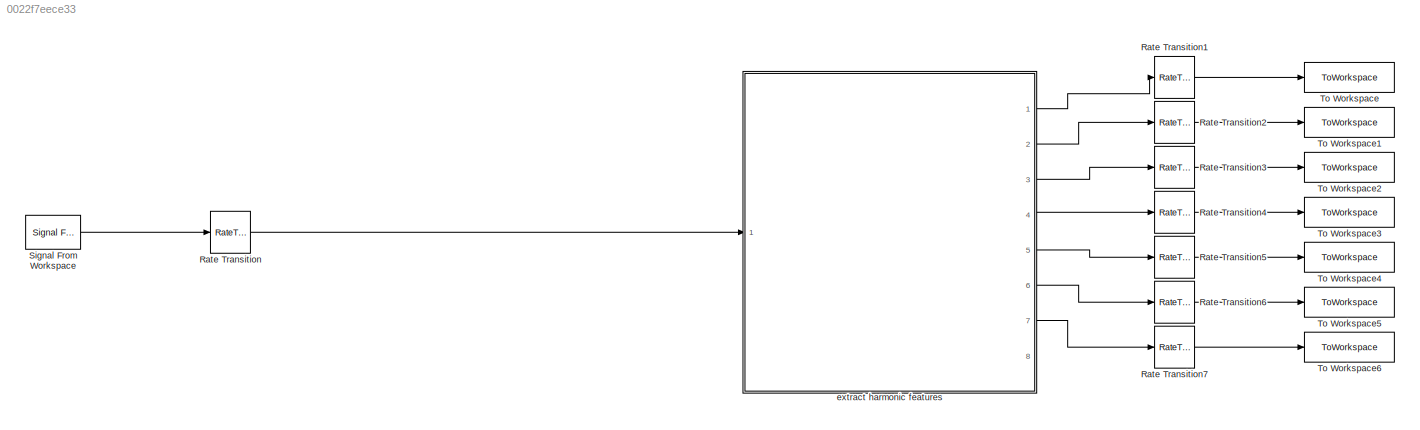
MODEL slx_0022f7eece33
KIND model
CONFIG AbsTol = auto
CONFIG EnableMultiTasking = off
CONFIG FixedStep = auto
CONFIG InitFcn = simulinkInitHarmonics
CONFIG MaxStep = auto
CONFIG MinStep = auto
CONFIG PostLoadFcn = addpath([fileparts(which(bdroot)) filesep '..' filesep])
CONFIG RelTol = 1e-3
CONFIG SampleTimeConstraint = Unconstrained
CONFIG SolverName = FixedStepDiscrete
CONFIG StartTime = 0.0
CONFIG StopFcn = simulinkVerifyHarmonics
CONFIG StopTime = stopTime
BLOCK [RateTransition] Rate Transition
  Deterministic = off
  OutPortSampleTime = params.systemClockPeriod
BLOCK [RateTransition] Rate Transition1
  OutPortSampleTime = params.samplingPeriod
BLOCK [RateTransition] Rate Transition2
  OutPortSampleTime = params.samplingPeriod
BLOCK [RateTransition] Rate Transition3
  OutPortSampleTime = params.samplingPeriod
BLOCK [RateTransition] Rate Transition4
  OutPortSampleTime = params.samplingPeriod
BLOCK [RateTransition] Rate Transition5
  OutPortSampleTime = params.samplingPeriod
BLOCK [RateTransition] Rate Transition6
  OutPortSampleTime = params.samplingPeriod
BLOCK [RateTransition] Rate Transition7
  OutPortSampleTime = params.samplingPeriod
BLOCK [Reference] Signal From Workspace  REF=dspsrcs4/Signal From
Workspace
  Ports = [0, 1]
  SourceBlock = dspsrcs4/Signal From\nWorkspace
  SourceProductBaseCode = DS
  SourceType = Signal From Workspace
BLOCK [ToWorkspace] To Workspace
  FixptAsFi = on
  MaxDataPoints = inf
  Ports = [1]
  SampleTime = -1
  Save2DSignal = 2-D array (concatenate along first dimension)
  VariableName = harmonicHeightsOut
BLOCK [ToWorkspace] To Workspace1
  FixptAsFi = on
  MaxDataPoints = inf
  Ports = [1]
  SampleTime = -1
  Save2DSignal = 2-D array (concatenate along first dimension)
  VariableName = harmonicWidthsOut
BLOCK [ToWorkspace] To Workspace2
  FixptAsFi = on
  MaxDataPoints = inf
  Ports = [1]
  SampleTime = -1
  Save2DSignal = 2-D array (concatenate along first dimension)
  VariableName = harmonicProminencesOut
BLOCK [ToWorkspace] To Workspace3
  FixptAsFi = on
  MaxDataPoints = inf
  Ports = [1]
  SampleTime = -1
  Save2DSignal = 2-D array (concatenate along first dimension)
  VariableName = harmonicHeightRatiosOut
BLOCK [ToWorkspace] To Workspace4
  FixptAsFi = on
  MaxDataPoints = inf
  Ports = [1]
  SampleTime = -1
  Save2DSignal = 2-D array (concatenate along first dimension)
  VariableName = harmonicWidthRatiosOut
BLOCK [ToWorkspace] To Workspace5
  FixptAsFi = on
  MaxDataPoints = inf
  Ports = [1]
  SampleTime = -1
  Save2DSignal = 2-D array (concatenate along first dimension)
  VariableName = harmonicProminenceRatiosOut
BLOCK [ToWorkspace] To Workspace6
  FixptAsFi = on
  MaxDataPoints = inf
  Ports = [1]
  SampleTime = -1
  Save2DSignal = 2-D array (concatenate along first dimension)
  VariableName = harmonicLocationsOut
BLOCK [SubSystem] extract harmonic features
  Ports = [1, 8]
  ReferencedSubsystem = harmonicFeatures
  RequestExecContextInheritance = off
LINE Rate Transition1:1 -> To Workspace:1
LINE Rate Transition2:1 -> To Workspace1:1
LINE Rate Transition3:1 -> To Workspace2:1
LINE Rate Transition4:1 -> To Workspace3:1
LINE Rate Transition5:1 -> To Workspace4:1
LINE Rate Transition6:1 -> To Workspace5:1
LINE Rate Transition7:1 -> To Workspace6:1
LINE Rate Transition:1 -> extract harmonic features:1
LINE Signal From Workspace:1 -> Rate Transition:1
LINE extract harmonic features:1 -> Rate Transition1:1
LINE extract harmonic features:2 -> Rate Transition2:1
LINE extract harmonic features:3 -> Rate Transition3:1
LINE extract harmonic features:4 -> Rate Transition4:1
LINE extract harmonic features:5 -> Rate Transition5:1
LINE extract harmonic features:6 -> Rate Transition6:1
LINE extract harmonic features:7 -> Rate Transition7:1
